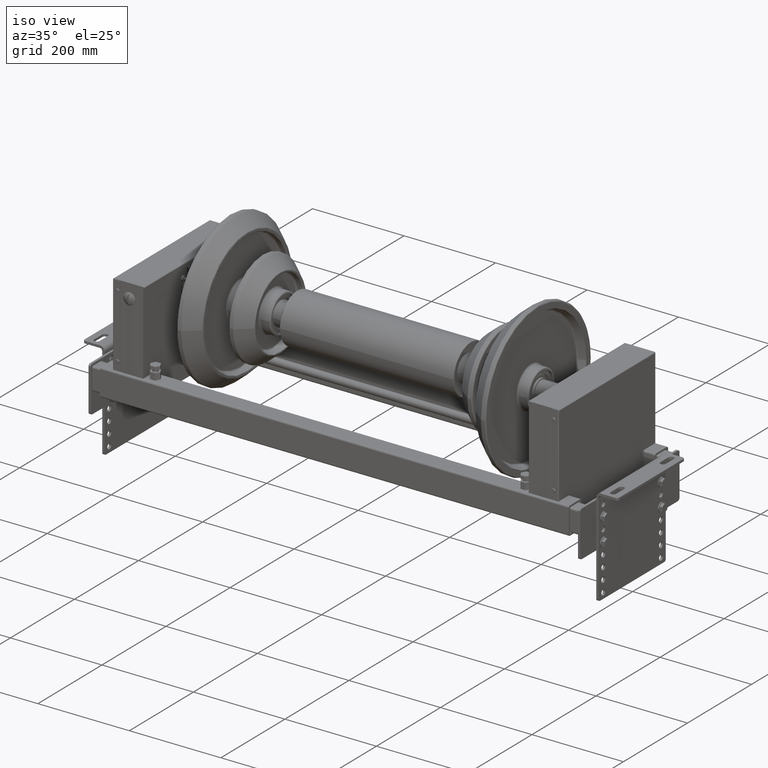
[diagram: clean part render]
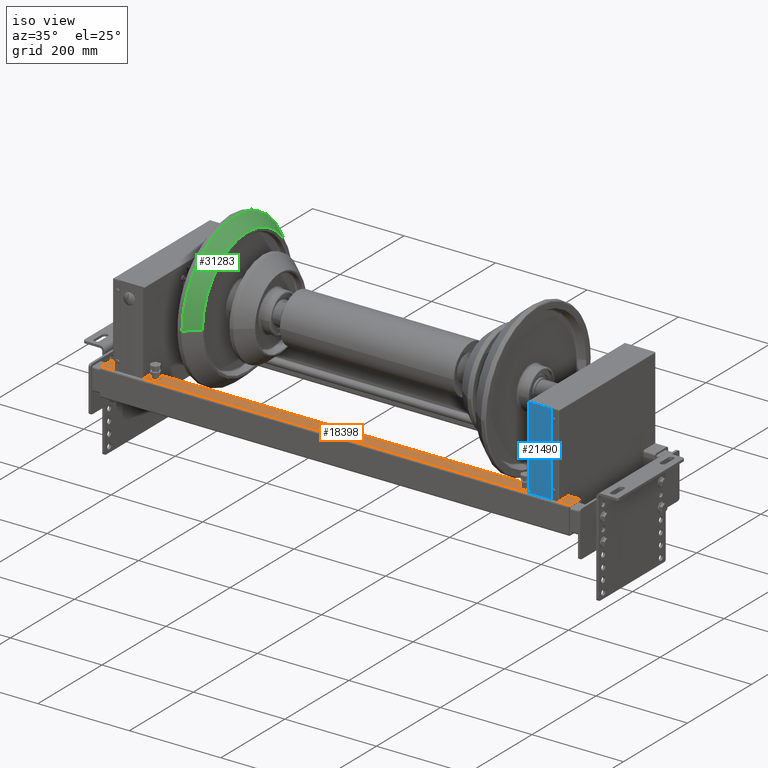
[diagram: same view with three faces highlighted in distinct colors, each labeled with its STEP entity id]
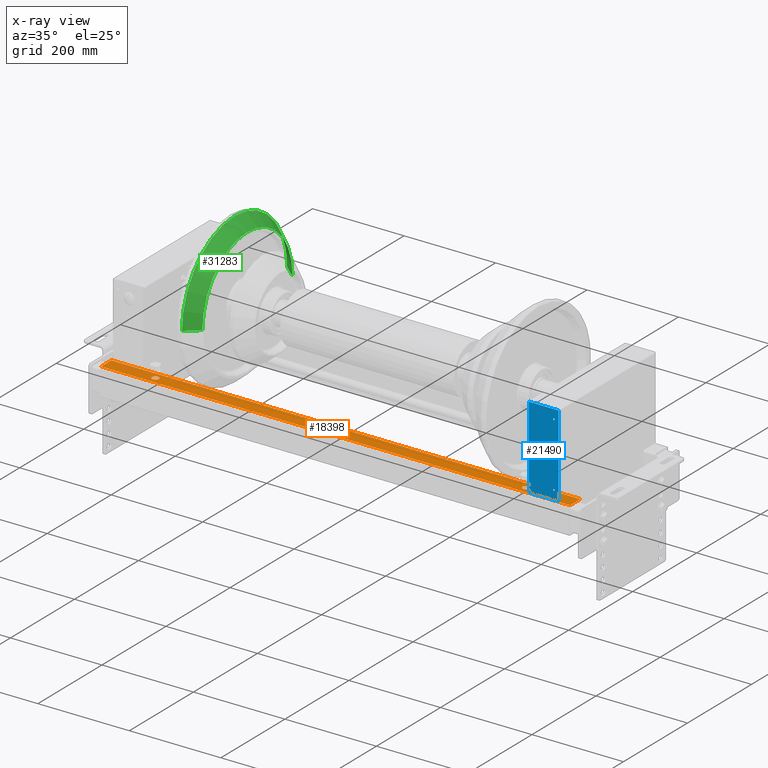
[diagram: x-ray of the same camera — body ghosted, the three highlighted faces saturated]
A machine part, iso view with three faces highlighted in distinct colors.
The next image is the same camera in x-ray (body ghosted, the three faces saturated) — at least one of them is partly hidden behind the body in this view.
Their STEP definitions:

[orange] entity #18398 — the highlighted planar face has unit normal (0, 0, 1).
#18191=CARTESIAN_POINT('',(-1.776357E-015,30.0,-290.100000000000020));
#18192=VERTEX_POINT('',#18191);
#18201=CARTESIAN_POINT('',(-8.701182E-016,30.0,-304.899999999999980));
#18202=VERTEX_POINT('',#18201);
#18203=CARTESIAN_POINT('',(-1.776357E-015,30.0,-297.500000000000000));
#18204=DIRECTION('',(0.0,-1.0,0.0));
#18205=DIRECTION('',(0.0,0.0,1.0));
#18206=AXIS2_PLACEMENT_3D('',#18203,#18204,#18205);
#18207=CIRCLE('',#18206,7.400000000000000);
#18208=EDGE_CURVE('',#18202,#18192,#18207,.T.);
#18233=CARTESIAN_POINT('',(0.0,30.0,519.899999999999980));
#18234=VERTEX_POINT('',#18233);
#18243=CARTESIAN_POINT('',(9.062386E-016,30.0,505.100000000000020));
#18244=VERTEX_POINT('',#18243);
#18245=CARTESIAN_POINT('',(0.0,30.0,512.500000000000000));
#18246=DIRECTION('',(0.0,-1.0,0.0));
#18247=DIRECTION('',(0.0,0.0,1.0));
#18248=AXIS2_PLACEMENT_3D('',#18245,#18246,#18247);
#18249=CIRCLE('',#18248,7.400000000000000);
#18250=EDGE_CURVE('',#18244,#18234,#18249,.T.);
#18284=CARTESIAN_POINT('',(0.0,30.0,512.500000000000000));
#18285=DIRECTION('',(0.0,-1.0,0.0));
#18286=DIRECTION('',(0.0,0.0,1.0));
#18287=AXIS2_PLACEMENT_3D('',#18284,#18285,#18286);
#18288=CIRCLE('',#18287,7.400000000000000);
#18289=EDGE_CURVE('',#18234,#18244,#18288,.T.);
#18308=CARTESIAN_POINT('',(-1.776357E-015,30.0,-297.500000000000000));
#18309=DIRECTION('',(0.0,-1.0,0.0));
#18310=DIRECTION('',(0.0,0.0,1.0));
#18311=AXIS2_PLACEMENT_3D('',#18308,#18309,#18310);
#18312=CIRCLE('',#18311,7.400000000000000);
#18313=EDGE_CURVE('',#18192,#18202,#18312,.T.);
#18325=CARTESIAN_POINT('',(-16.0,30.0,620.0));
#18326=VERTEX_POINT('',#18325);
#18334=CARTESIAN_POINT('',(-16.0,30.0,-405.0));
#18335=VERTEX_POINT('',#18334);
#18336=CARTESIAN_POINT('',(-16.0,30.0,-405.0));
#18337=DIRECTION('',(0.0,0.0,1.0));
#18338=VECTOR('',#18337,1025.0);
#18339=LINE('',#18336,#18338);
#18340=EDGE_CURVE('',#18335,#18326,#18339,.T.);
#18360=CARTESIAN_POINT('',(-16.0,30.0,-405.0));
#18361=DIRECTION('',(0.0,1.0,0.0));
#18362=DIRECTION('',(0.0,0.0,1.0));
#18363=AXIS2_PLACEMENT_3D('',#18360,#18361,#18362);
#18364=PLANE('',#18363);
#18365=CARTESIAN_POINT('',(16.0,30.0,620.0));
#18366=VERTEX_POINT('',#18365);
#18367=CARTESIAN_POINT('',(-16.0,30.0,620.0));
#18368=DIRECTION('',(1.0,0.0,0.0));
#18369=VECTOR('',#18368,32.0);
#18370=LINE('',#18367,#18369);
#18371=EDGE_CURVE('',#18326,#18366,#18370,.T.);
#18372=ORIENTED_EDGE('',*,*,#18371,.T.);
#18373=CARTESIAN_POINT('',(16.0,30.0,-405.0));
#18374=VERTEX_POINT('',#18373);
#18375=CARTESIAN_POINT('',(16.0,30.0,-405.0));
#18376=DIRECTION('',(0.0,0.0,1.0));
#18377=VECTOR('',#18376,1025.0);
#18378=LINE('',#18375,#18377);
#18379=EDGE_CURVE('',#18374,#18366,#18378,.T.);
#18380=ORIENTED_EDGE('',*,*,#18379,.F.);
#18381=CARTESIAN_POINT('',(-16.0,30.0,-405.0));
#18382=DIRECTION('',(1.0,0.0,0.0));
#18383=VECTOR('',#18382,32.0);
#18384=LINE('',#18381,#18383);
#18385=EDGE_CURVE('',#18335,#18374,#18384,.T.);
#18386=ORIENTED_EDGE('',*,*,#18385,.F.);
#18387=ORIENTED_EDGE('',*,*,#18340,.T.);
#18388=EDGE_LOOP('',(#18372,#18380,#18386,#18387));
#18389=FACE_OUTER_BOUND('',#18388,.T.);
#18390=ORIENTED_EDGE('',*,*,#18289,.T.);
#18391=ORIENTED_EDGE('',*,*,#18250,.T.);
#18392=EDGE_LOOP('',(#18390,#18391));
#18393=FACE_BOUND('',#18392,.T.);
#18394=ORIENTED_EDGE('',*,*,#18313,.T.);
#18395=ORIENTED_EDGE('',*,*,#18208,.T.);
#18396=EDGE_LOOP('',(#18394,#18395));
#18397=FACE_BOUND('',#18396,.T.);
#18398=ADVANCED_FACE('',(#18389,#18393,#18397),#18364,.T.);

[blue] entity #21490 — the highlighted planar face has unit normal (0, -1, 0).
#20480=CARTESIAN_POINT('',(-150.000000000000910,65.000000000000227,55.250000000000000));
#20481=VERTEX_POINT('',#20480);
#20490=CARTESIAN_POINT('',(-150.000000000000910,65.000000000000227,51.750000000000000));
#20491=VERTEX_POINT('',#20490);
#20492=CARTESIAN_POINT('',(-150.000000000000910,65.000000000000227,53.500000000000000));
#20493=DIRECTION('',(1.0,0.0,0.0));
#20494=DIRECTION('',(0.0,0.0,1.0));
#20495=AXIS2_PLACEMENT_3D('',#20492,#20493,#20494);
#20496=CIRCLE('',#20495,1.750000000000000);
#20497=EDGE_CURVE('',#20491,#20481,#20496,.T.);
#20564=CARTESIAN_POINT('',(-150.000000000000910,-74.999999999999773,55.250000000000000));
#20565=VERTEX_POINT('',#20564);
#20574=CARTESIAN_POINT('',(-150.000000000000910,-74.999999999999773,51.750000000000000));
#20575=VERTEX_POINT('',#20574);
#20576=CARTESIAN_POINT('',(-150.000000000000910,-74.999999999999773,53.500000000000000));
#20577=DIRECTION('',(1.0,0.0,0.0));
#20578=DIRECTION('',(0.0,0.0,1.0));
#20579=AXIS2_PLACEMENT_3D('',#20576,#20577,#20578);
#20580=CIRCLE('',#20579,1.750000000000000);
#20581=EDGE_CURVE('',#20575,#20565,#20580,.T.);
#20615=CARTESIAN_POINT('',(-150.000000000000910,-74.999999999999773,53.500000000000000));
#20616=DIRECTION('',(1.0,0.0,0.0));
#20617=DIRECTION('',(0.0,0.0,1.0));
#20618=AXIS2_PLACEMENT_3D('',#20615,#20616,#20617);
#20619=CIRCLE('',#20618,1.750000000000000);
#20620=EDGE_CURVE('',#20565,#20575,#20619,.T.);
#20663=CARTESIAN_POINT('',(-150.000000000000910,65.000000000000227,53.500000000000000));
#20664=DIRECTION('',(1.0,0.0,0.0));
#20665=DIRECTION('',(0.0,0.0,1.0));
#20666=AXIS2_PLACEMENT_3D('',#20663,#20664,#20665);
#20667=CIRCLE('',#20666,1.750000000000000);
#20668=EDGE_CURVE('',#20481,#20491,#20667,.T.);
#20829=CARTESIAN_POINT('',(-150.000000000000910,-94.999999999999773,63.500000000000000));
#20830=VERTEX_POINT('',#20829);
#20831=CARTESIAN_POINT('',(-150.000000000000910,85.000000000000227,63.500000000000000));
#20832=VERTEX_POINT('',#20831);
#20833=CARTESIAN_POINT('',(-150.000000000000910,-94.999999999999773,63.500000000000000));
#20834=DIRECTION('',(0.0,1.0,0.0));
#20835=VECTOR('',#20834,180.0);
#20836=LINE('',#20833,#20835);
#20837=EDGE_CURVE('',#20830,#20832,#20836,.T.);
#21027=CARTESIAN_POINT('',(-150.000000000000910,85.000000000000227,-1.500000000000000));
#21028=VERTEX_POINT('',#21027);
#21035=CARTESIAN_POINT('',(-150.000000000000910,85.000000000000227,-1.500000000000000));
#21036=DIRECTION('',(0.0,0.0,1.0));
#21037=VECTOR('',#21036,65.0);
#21038=LINE('',#21035,#21037);
#21039=EDGE_CURVE('',#21028,#20832,#21038,.T.);
#21140=CARTESIAN_POINT('',(-150.000000000000910,-94.999999999999773,-1.500000000000000));
#21141=VERTEX_POINT('',#21140);
#21148=CARTESIAN_POINT('',(-150.000000000000910,85.000000000000227,-1.500000000000000));
#21149=DIRECTION('',(0.0,-1.0,0.0));
#21150=VECTOR('',#21149,180.0);
#21151=LINE('',#21148,#21150);
#21152=EDGE_CURVE('',#21028,#21141,#21151,.T.);
#21462=CARTESIAN_POINT('',(-150.000000000000910,-94.999999999999773,-1.500000000000000));
#21463=DIRECTION('',(0.0,0.0,1.0));
#21464=VECTOR('',#21463,65.0);
#21465=LINE('',#21462,#21464);
#21466=EDGE_CURVE('',#21141,#20830,#21465,.T.);
#21471=CARTESIAN_POINT('',(-150.000000000000910,-94.999999999999773,-1.500000000000000));
#21472=DIRECTION('',(-1.0,0.0,0.0));
#21473=DIRECTION('',(0.0,0.0,1.0));
#21474=AXIS2_PLACEMENT_3D('',#21471,#21472,#21473);
#21475=PLANE('',#21474);
#21476=ORIENTED_EDGE('',*,*,#21039,.F.);
#21477=ORIENTED_EDGE('',*,*,#21152,.T.);
#21478=ORIENTED_EDGE('',*,*,#21466,.T.);
#21479=ORIENTED_EDGE('',*,*,#20837,.T.);
#21480=EDGE_LOOP('',(#21476,#21477,#21478,#21479));
#21481=FACE_OUTER_BOUND('',#21480,.T.);
#21482=ORIENTED_EDGE('',*,*,#20620,.T.);
#21483=ORIENTED_EDGE('',*,*,#20581,.T.);
#21484=EDGE_LOOP('',(#21482,#21483));
#21485=FACE_BOUND('',#21484,.T.);
#21486=ORIENTED_EDGE('',*,*,#20668,.T.);
#21487=ORIENTED_EDGE('',*,*,#20497,.T.);
#21488=EDGE_LOOP('',(#21486,#21487));
#21489=FACE_BOUND('',#21488,.T.);
#21490=ADVANCED_FACE('',(#21481,#21485,#21489),#21475,.T.);

[green] entity #31283 — the highlighted conical surface has half-angle 40 deg.
#30935=CARTESIAN_POINT('',(9.096796376304315,0.0,-164.415111107797430));
#30936=VERTEX_POINT('',#30935);
#30971=CARTESIAN_POINT('',(9.096796376304324,-164.415111107797400,-2.013504E-014));
#30972=VERTEX_POINT('',#30971);
#30980=CARTESIAN_POINT('',(9.096796376304317,0.0,-2.013438E-014));
#30981=DIRECTION('',(1.0,0.0,0.0));
#30982=DIRECTION('',(0.0,-1.0,0.0));
#30983=AXIS2_PLACEMENT_3D('',#30980,#30981,#30982);
#30984=CIRCLE('',#30983,164.415111107797400);
#30985=EDGE_CURVE('',#30972,#30936,#30984,.T.);
#31234=CARTESIAN_POINT('',(-5.103080092572427,0.0,0.0));
#31235=DIRECTION('',(1.0,0.0,0.0));
#31236=DIRECTION('',(0.0,1.0,0.0));
#31237=AXIS2_PLACEMENT_3D('',#31234,#31235,#31236);
#31238=CONICAL_SURFACE('',#31237,152.499999999999970,40.000000000000014);
#31239=CARTESIAN_POINT('',(9.096796376304317,164.415111107797400,3.155444E-030));
#31240=VERTEX_POINT('',#31239);
#31241=CARTESIAN_POINT('',(-19.106969024216347,140.749341962409940,-3.447251E-014));
#31242=VERTEX_POINT('',#31241);
#31243=CARTESIAN_POINT('',(9.096796376304317,164.415111107797400,3.155444E-030));
#31244=DIRECTION('',(-0.766044443118978,-0.642787609686540,-9.363102E-016));
#31245=VECTOR('',#31244,36.817400940457212);
#31246=LINE('',#31243,#31245);
#31247=EDGE_CURVE('',#31240,#31242,#31246,.T.);
#31248=ORIENTED_EDGE('',*,*,#31247,.F.);
#31249=CARTESIAN_POINT('',(9.096796376304317,0.0,-2.013438E-014));
#31250=DIRECTION('',(1.0,0.0,0.0));
#31251=DIRECTION('',(0.0,-1.0,0.0));
#31252=AXIS2_PLACEMENT_3D('',#31249,#31250,#31251);
#31253=CIRCLE('',#31252,164.415111107797400);
#31254=EDGE_CURVE('',#30936,#31240,#31253,.T.);
#31255=ORIENTED_EDGE('',*,*,#31254,.F.);
#31256=ORIENTED_EDGE('',*,*,#30985,.F.);
#31257=CARTESIAN_POINT('',(-19.106969024216369,-140.749341962409940,-1.723682E-014));
#31258=VERTEX_POINT('',#31257);
#31259=CARTESIAN_POINT('',(9.096796376304324,-164.415111107797400,-2.013504E-014));
#31260=DIRECTION('',(-0.766044443118978,0.642787609686540,7.871878E-017));
#31261=VECTOR('',#31260,36.817400940457233);
#31262=LINE('',#31259,#31261);
#31263=EDGE_CURVE('',#30972,#31258,#31262,.T.);
#31264=ORIENTED_EDGE('',*,*,#31263,.T.);
#31265=CARTESIAN_POINT('',(-19.106969024216347,0.0,-140.749341962409970));
#31266=VERTEX_POINT('',#31265);
#31267=CARTESIAN_POINT('',(-19.106969024216347,0.0,-1.723625E-014));
#31268=DIRECTION('',(-1.0,0.0,0.0));
#31269=DIRECTION('',(0.0,-1.0,0.0));
#31270=AXIS2_PLACEMENT_3D('',#31267,#31268,#31269);
#31271=CIRCLE('',#31270,140.749341962409940);
#31272=EDGE_CURVE('',#31266,#31258,#31271,.T.);
#31273=ORIENTED_EDGE('',*,*,#31272,.F.);
#31274=CARTESIAN_POINT('',(-19.106969024216347,0.0,-1.723625E-014));
#31275=DIRECTION('',(-1.0,0.0,0.0));
#31276=DIRECTION('',(0.0,-1.0,0.0));
#31277=AXIS2_PLACEMENT_3D('',#31274,#31275,#31276);
#31278=CIRCLE('',#31277,140.749341962409940);
#31279=EDGE_CURVE('',#31242,#31266,#31278,.T.);
#31280=ORIENTED_EDGE('',*,*,#31279,.F.);
#31281=EDGE_LOOP('',(#31248,#31255,#31256,#31264,#31273,#31280));
#31282=FACE_OUTER_BOUND('',#31281,.T.);
#31283=ADVANCED_FACE('',(#31282),#31238,.T.);